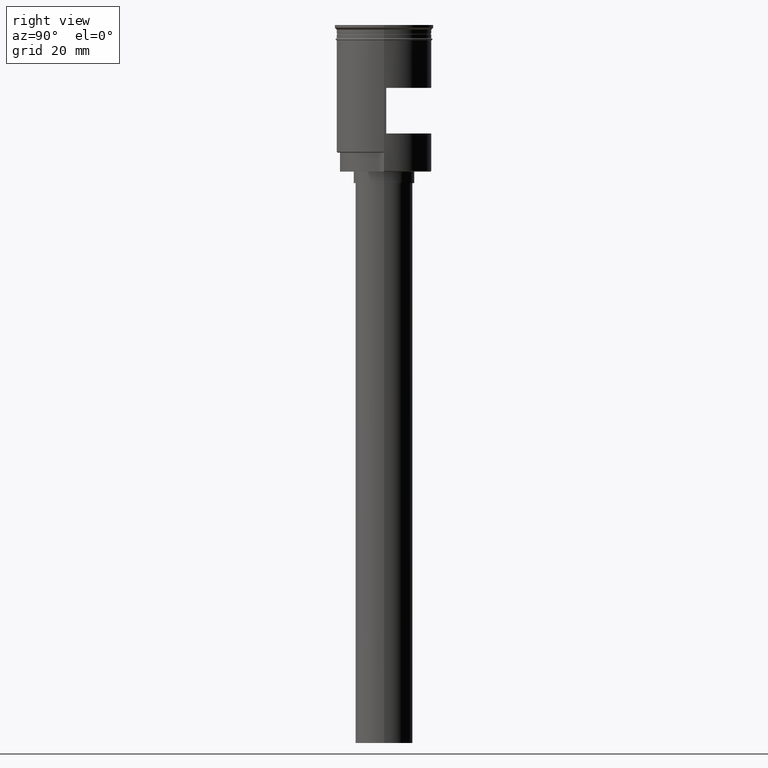
[diagram: clean part render]
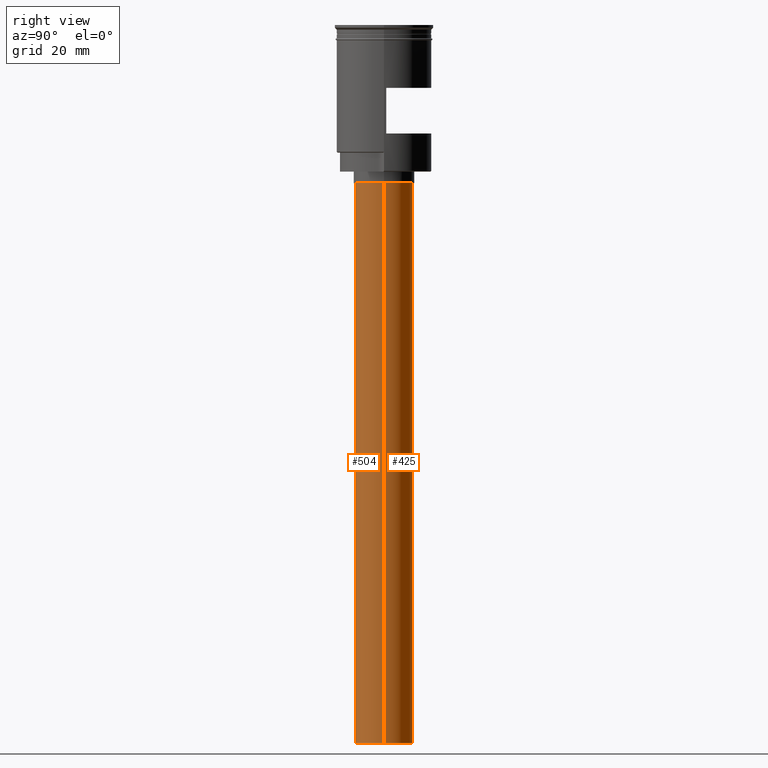
[diagram: same view with one multi-face feature highlighted, each face labeled with its STEP entity id]
A machine part, right view. The highlighted faces form ONE feature: a constant-radius fillet chain: 2 tangent blend faces with common blend radius 7.5 mm. The faces share edges in the B-rep.
Their STEP definitions:
[1] entity #504 (Cylinder):
#23 = FACE_OUTER_BOUND ( 'NONE', #1603, .T. ) ;
#98 = CARTESIAN_POINT ( 'NONE',  ( -7.500000000000000000, 9.184850993605147944E-16, -188.5000000000000000 ) ) ;
#152 = EDGE_CURVE ( 'NONE', #1165, #1220, #1483, .T. ) ;
#183 = CARTESIAN_POINT ( 'NONE',  ( 7.500000000000000000, 0.000000000000000000, -41.50000000000000000 ) ) ;
#191 = VECTOR ( 'NONE', #927, 1000.000000000000000 ) ;
#205 = LINE ( 'NONE', #564, #241 ) ;
#214 = ORIENTED_EDGE ( 'NONE', *, *, #836, .F. ) ;
#241 = VECTOR ( 'NONE', #339, 1000.000000000000000 ) ;
#271 = VERTEX_POINT ( 'NONE', #469 ) ;
#277 = EDGE_CURVE ( 'NONE', #271, #1165, #205, .T. ) ;
#312 = CARTESIAN_POINT ( 'NONE',  ( -7.500000000000000000, 9.184850993605147944E-16, -188.5000000000000000 ) ) ;
#339 = DIRECTION ( 'NONE',  ( -0.000000000000000000, -0.000000000000000000, 1.000000000000000000 ) ) ;
#370 = CIRCLE ( 'NONE', #1211, 7.500000000000000000 ) ;
#427 = CARTESIAN_POINT ( 'NONE',  ( -7.500000000000000000, 9.184850993605147944E-16, -41.50000000000000000 ) ) ;
#469 = CARTESIAN_POINT ( 'NONE',  ( 7.500000000000000000, 0.000000000000000000, -188.5000000000000000 ) ) ;
#504 = ADVANCED_FACE ( 'NONE', ( #23 ), #514, .T. ) ;
#514 = CYLINDRICAL_SURFACE ( 'NONE', #992, 7.500000000000000000 ) ;
#564 = CARTESIAN_POINT ( 'NONE',  ( 7.500000000000000000, 0.000000000000000000, -188.5000000000000000 ) ) ;
#690 = ORIENTED_EDGE ( 'NONE', *, *, #277, .T. ) ;
#698 = DIRECTION ( 'NONE',  ( 0.000000000000000000, 0.000000000000000000, -1.000000000000000000 ) ) ;
#774 = ORIENTED_EDGE ( 'NONE', *, *, #152, .T. ) ;
#836 = EDGE_CURVE ( 'NONE', #839, #1220, #1090, .T. ) ;
#839 = VERTEX_POINT ( 'NONE', #312 ) ;
#881 = CARTESIAN_POINT ( 'NONE',  ( 0.000000000000000000, 0.000000000000000000, -188.5000000000000000 ) ) ;
#927 = DIRECTION ( 'NONE',  ( -0.000000000000000000, -0.000000000000000000, 1.000000000000000000 ) ) ;
#991 = DIRECTION ( 'NONE',  ( 1.000000000000000000, 0.000000000000000000, 0.000000000000000000 ) ) ;
#992 = AXIS2_PLACEMENT_3D ( 'NONE', #881, #1357, #991 ) ;
#1090 = LINE ( 'NONE', #98, #191 ) ;
#1146 = ORIENTED_EDGE ( 'NONE', *, *, #1159, .F. ) ;
#1159 = EDGE_CURVE ( 'NONE', #271, #839, #370, .T. ) ;
#1165 = VERTEX_POINT ( 'NONE', #183 ) ;
#1176 = DIRECTION ( 'NONE',  ( -1.000000000000000000, 0.000000000000000000, 0.000000000000000000 ) ) ;
#1211 = AXIS2_PLACEMENT_3D ( 'NONE', #1295, #698, #1453 ) ;
#1220 = VERTEX_POINT ( 'NONE', #427 ) ;
#1285 = CARTESIAN_POINT ( 'NONE',  ( 0.000000000000000000, 0.000000000000000000, -41.50000000000000000 ) ) ;
#1295 = CARTESIAN_POINT ( 'NONE',  ( 0.000000000000000000, 0.000000000000000000, -188.5000000000000000 ) ) ;
#1300 = AXIS2_PLACEMENT_3D ( 'NONE', #1285, #1404, #1176 ) ;
#1357 = DIRECTION ( 'NONE',  ( -0.000000000000000000, -0.000000000000000000, 1.000000000000000000 ) ) ;
#1404 = DIRECTION ( 'NONE',  ( 0.000000000000000000, 0.000000000000000000, -1.000000000000000000 ) ) ;
#1453 = DIRECTION ( 'NONE',  ( -1.000000000000000000, 0.000000000000000000, 0.000000000000000000 ) ) ;
#1483 = CIRCLE ( 'NONE', #1300, 7.500000000000000000 ) ;
#1603 = EDGE_LOOP ( 'NONE', ( #214, #1146, #690, #774 ) ) ;
[2] entity #425 (Cylinder):
#53 = EDGE_CURVE ( 'NONE', #1220, #1165, #1178, .T. ) ;
#98 = CARTESIAN_POINT ( 'NONE',  ( -7.500000000000000000, 9.184850993605147944E-16, -188.5000000000000000 ) ) ;
#128 = ORIENTED_EDGE ( 'NONE', *, *, #277, .F. ) ;
#183 = CARTESIAN_POINT ( 'NONE',  ( 7.500000000000000000, 0.000000000000000000, -41.50000000000000000 ) ) ;
#191 = VECTOR ( 'NONE', #927, 1000.000000000000000 ) ;
#205 = LINE ( 'NONE', #564, #241 ) ;
#241 = VECTOR ( 'NONE', #339, 1000.000000000000000 ) ;
#271 = VERTEX_POINT ( 'NONE', #469 ) ;
#277 = EDGE_CURVE ( 'NONE', #271, #1165, #205, .T. ) ;
#284 = EDGE_CURVE ( 'NONE', #839, #271, #290, .T. ) ;
#290 = CIRCLE ( 'NONE', #652, 7.500000000000000000 ) ;
#312 = CARTESIAN_POINT ( 'NONE',  ( -7.500000000000000000, 9.184850993605147944E-16, -188.5000000000000000 ) ) ;
#339 = DIRECTION ( 'NONE',  ( -0.000000000000000000, -0.000000000000000000, 1.000000000000000000 ) ) ;
#340 = AXIS2_PLACEMENT_3D ( 'NONE', #1472, #494, #748 ) ;
#425 = ADVANCED_FACE ( 'NONE', ( #973 ), #1010, .T. ) ;
#427 = CARTESIAN_POINT ( 'NONE',  ( -7.500000000000000000, 9.184850993605147944E-16, -41.50000000000000000 ) ) ;
#469 = CARTESIAN_POINT ( 'NONE',  ( 7.500000000000000000, 0.000000000000000000, -188.5000000000000000 ) ) ;
#487 = DIRECTION ( 'NONE',  ( 0.000000000000000000, 0.000000000000000000, -1.000000000000000000 ) ) ;
#494 = DIRECTION ( 'NONE',  ( -0.000000000000000000, -0.000000000000000000, 1.000000000000000000 ) ) ;
#564 = CARTESIAN_POINT ( 'NONE',  ( 7.500000000000000000, 0.000000000000000000, -188.5000000000000000 ) ) ;
#652 = AXIS2_PLACEMENT_3D ( 'NONE', #1203, #1562, #964 ) ;
#748 = DIRECTION ( 'NONE',  ( 1.000000000000000000, 0.000000000000000000, 0.000000000000000000 ) ) ;
#773 = AXIS2_PLACEMENT_3D ( 'NONE', #1266, #487, #874 ) ;
#836 = EDGE_CURVE ( 'NONE', #839, #1220, #1090, .T. ) ;
#839 = VERTEX_POINT ( 'NONE', #312 ) ;
#841 = ORIENTED_EDGE ( 'NONE', *, *, #836, .T. ) ;
#872 = ORIENTED_EDGE ( 'NONE', *, *, #53, .T. ) ;
#874 = DIRECTION ( 'NONE',  ( -1.000000000000000000, 0.000000000000000000, 0.000000000000000000 ) ) ;
#882 = EDGE_LOOP ( 'NONE', ( #1137, #841, #872, #128 ) ) ;
#927 = DIRECTION ( 'NONE',  ( -0.000000000000000000, -0.000000000000000000, 1.000000000000000000 ) ) ;
#964 = DIRECTION ( 'NONE',  ( -1.000000000000000000, 0.000000000000000000, 0.000000000000000000 ) ) ;
#973 = FACE_OUTER_BOUND ( 'NONE', #882, .T. ) ;
#1010 = CYLINDRICAL_SURFACE ( 'NONE', #340, 7.500000000000000000 ) ;
#1090 = LINE ( 'NONE', #98, #191 ) ;
#1137 = ORIENTED_EDGE ( 'NONE', *, *, #284, .F. ) ;
#1165 = VERTEX_POINT ( 'NONE', #183 ) ;
#1178 = CIRCLE ( 'NONE', #773, 7.500000000000000000 ) ;
#1203 = CARTESIAN_POINT ( 'NONE',  ( 0.000000000000000000, 0.000000000000000000, -188.5000000000000000 ) ) ;
#1220 = VERTEX_POINT ( 'NONE', #427 ) ;
#1266 = CARTESIAN_POINT ( 'NONE',  ( 0.000000000000000000, 0.000000000000000000, -41.50000000000000000 ) ) ;
#1472 = CARTESIAN_POINT ( 'NONE',  ( 0.000000000000000000, 0.000000000000000000, -188.5000000000000000 ) ) ;
#1562 = DIRECTION ( 'NONE',  ( 0.000000000000000000, 0.000000000000000000, -1.000000000000000000 ) ) ;